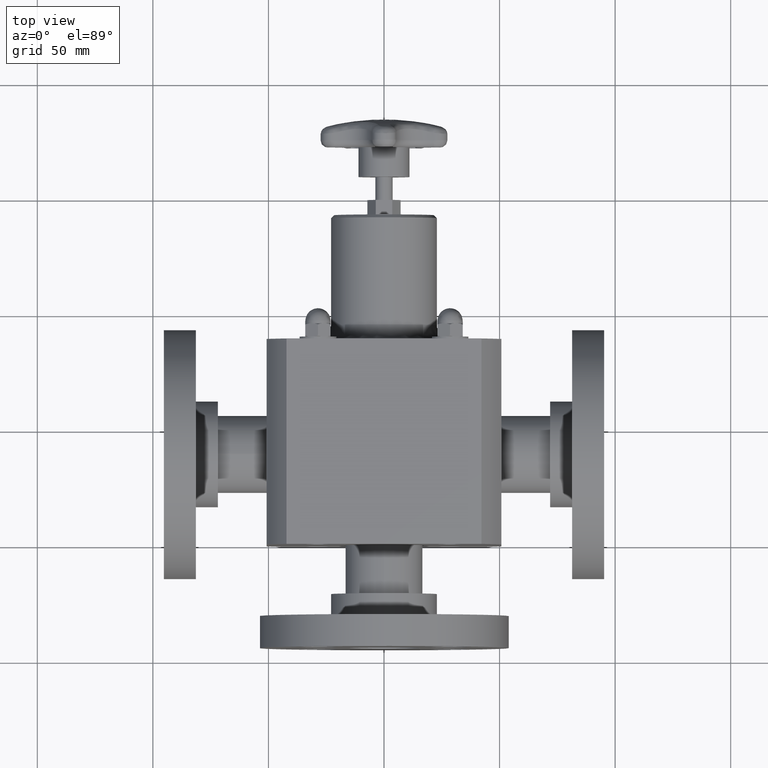
[diagram: clean part render]
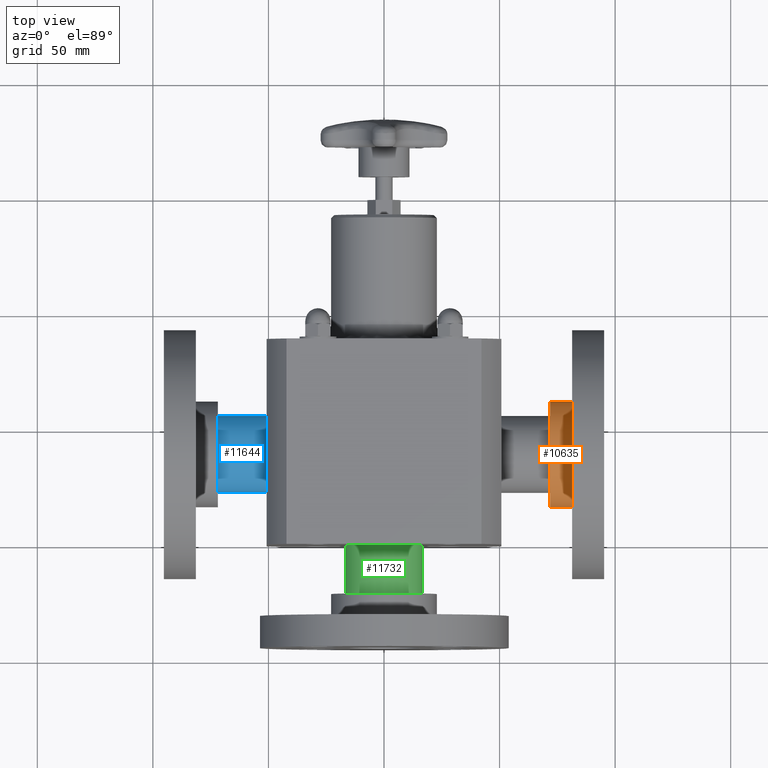
[diagram: same view with three faces highlighted in distinct colors, each labeled with its STEP entity id]
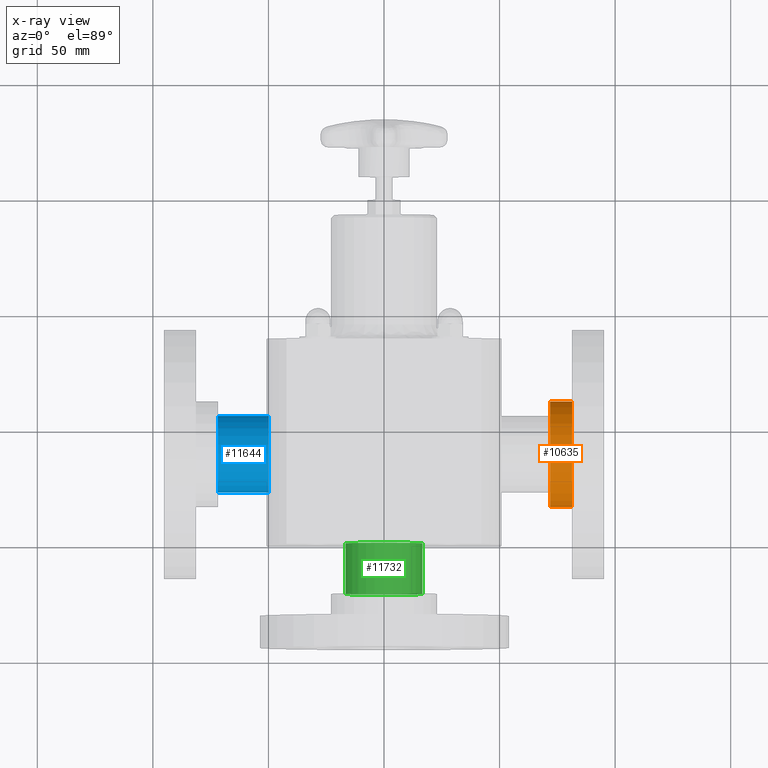
[diagram: x-ray of the same camera — body ghosted, the three highlighted faces saturated]
A machine part, top view with three faces highlighted in distinct colors.
The next image is the same camera in x-ray (body ghosted, the three faces saturated) — at least one of them is partly hidden behind the body in this view.
Their STEP definitions:

[orange] entity #10635 — the highlighted cylindrical surface (bore or boss wall) has radius 22.86 mm, axis along (-1, -0, 0).
#10593=CARTESIAN_POINT('',(2.829999999999999,0.649999999999999,-9.022522E-016));
#10594=VERTEX_POINT('',#10593);
#10595=CARTESIAN_POINT('',(2.829999999999999,1.549999999999999,5.525790E-017));
#10596=DIRECTION('',(-1.0,0.0,0.0));
#10597=DIRECTION('',(0.0,-1.0,0.0));
#10598=AXIS2_PLACEMENT_3D('',#10595,#10596,#10597);
#10599=CIRCLE('',#10598,0.900000000000000);
#10600=EDGE_CURVE('',#10594,#10594,#10599,.T.);
#10616=CARTESIAN_POINT('',(3.017499999999999,1.549999999999999,4.304139E-017));
#10617=DIRECTION('',(-1.0,-5.551115E-017,6.515473E-017));
#10618=DIRECTION('',(0.0,-1.0,0.0));
#10619=AXIS2_PLACEMENT_3D('',#10616,#10617,#10618);
#10620=CYLINDRICAL_SURFACE('',#10619,0.900000000000000);
#10621=ORIENTED_EDGE('',*,*,#10600,.F.);
#10622=EDGE_LOOP('',(#10621));
#10623=FACE_OUTER_BOUND('',#10622,.T.);
#10624=CARTESIAN_POINT('',(3.204999999999999,0.649999999999999,-9.266852E-016));
#10625=VERTEX_POINT('',#10624);
#10626=CARTESIAN_POINT('',(3.204999999999999,1.549999999999999,3.082487E-017));
#10627=DIRECTION('',(-1.0,0.0,0.0));
#10628=DIRECTION('',(0.0,-1.0,0.0));
#10629=AXIS2_PLACEMENT_3D('',#10626,#10627,#10628);
#10630=CIRCLE('',#10629,0.900000000000000);
#10631=EDGE_CURVE('',#10625,#10625,#10630,.T.);
#10632=ORIENTED_EDGE('',*,*,#10631,.T.);
#10633=EDGE_LOOP('',(#10632));
#10634=FACE_BOUND('',#10633,.T.);
#10635=ADVANCED_FACE('',(#10623,#10634),#10620,.T.);

[blue] entity #11644 — the highlighted cylindrical surface (bore or boss wall) has radius 16.7005 mm, axis along (1, 0, -0).
#10868=CARTESIAN_POINT('',(-2.830000000000001,1.550000000000036,0.657499999999999));
#10869=VERTEX_POINT('',#10868);
#10870=CARTESIAN_POINT('',(-2.830000000000001,1.549999999999996,-1.170974E-015));
#10871=DIRECTION('',(-1.0,0.0,0.0));
#10872=DIRECTION('',(0.0,0.0,-1.0));
#10873=AXIS2_PLACEMENT_3D('',#10870,#10871,#10872);
#10874=CIRCLE('',#10873,0.657500000000000);
#10875=EDGE_CURVE('',#10869,#10869,#10874,.T.);
#11311=CARTESIAN_POINT('',(-1.966729520810137,1.550000000000036,0.657499999999999));
#11312=VERTEX_POINT('',#11311);
#11313=CARTESIAN_POINT('',(-1.966729520810137,1.549999999999996,-1.248076E-015));
#11314=DIRECTION('',(1.0,0.0,0.0));
#11315=DIRECTION('',(0.0,0.0,-1.0));
#11316=AXIS2_PLACEMENT_3D('',#11313,#11314,#11315);
#11317=CIRCLE('',#11316,0.657500000000000);
#11318=EDGE_CURVE('',#11312,#11312,#11317,.T.);
#11633=CARTESIAN_POINT('',(-2.365000000000002,1.549999999999996,-1.212505E-015));
#11634=DIRECTION('',(1.0,1.665335E-016,-8.931406E-017));
#11635=DIRECTION('',(0.0,0.0,-1.0));
#11636=AXIS2_PLACEMENT_3D('',#11633,#11634,#11635);
#11637=CYLINDRICAL_SURFACE('',#11636,0.657500000000000);
#11638=ORIENTED_EDGE('',*,*,#10875,.F.);
#11639=EDGE_LOOP('',(#11638));
#11640=FACE_OUTER_BOUND('',#11639,.T.);
#11641=ORIENTED_EDGE('',*,*,#11318,.F.);
#11642=EDGE_LOOP('',(#11641));
#11643=FACE_BOUND('',#11642,.T.);
#11644=ADVANCED_FACE('',(#11640,#11643),#11637,.T.);

[green] entity #11732 — the highlighted cylindrical surface (bore or boss wall) has radius 16.7005 mm, axis along (0, 1, 0).
#10340=CARTESIAN_POINT('',(-4.064665E-014,-0.830000000000003,0.657499999999999));
#10341=VERTEX_POINT('',#10340);
#10342=CARTESIAN_POINT('',(-7.801923E-016,-0.830000000000003,-1.625798E-015));
#10343=DIRECTION('',(0.0,-1.0,0.0));
#10344=DIRECTION('',(0.0,0.0,-1.0));
#10345=AXIS2_PLACEMENT_3D('',#10342,#10343,#10344);
#10346=CIRCLE('',#10345,0.657500000000000);
#10347=EDGE_CURVE('',#10341,#10341,#10346,.T.);
#11450=CARTESIAN_POINT('',(-4.024600E-014,0.033290090360808,0.657499999999999));
#11451=VERTEX_POINT('',#11450);
#11452=CARTESIAN_POINT('',(-5.405811E-016,0.033290090360808,-1.524796E-015));
#11453=DIRECTION('',(0.0,1.0,0.0));
#11454=DIRECTION('',(0.0,0.0,-1.0));
#11455=AXIS2_PLACEMENT_3D('',#11452,#11453,#11454);
#11456=CIRCLE('',#11455,0.657500000000000);
#11457=EDGE_CURVE('',#11451,#11451,#11456,.T.);
#11721=CARTESIAN_POINT('',(-6.511288E-016,-0.365000000000003,-1.571395E-015));
#11722=DIRECTION('',(2.775558E-016,1.0,1.169965E-016));
#11723=DIRECTION('',(0.0,0.0,-1.0));
#11724=AXIS2_PLACEMENT_3D('',#11721,#11722,#11723);
#11725=CYLINDRICAL_SURFACE('',#11724,0.657500000000000);
#11726=ORIENTED_EDGE('',*,*,#10347,.F.);
#11727=EDGE_LOOP('',(#11726));
#11728=FACE_OUTER_BOUND('',#11727,.T.);
#11729=ORIENTED_EDGE('',*,*,#11457,.F.);
#11730=EDGE_LOOP('',(#11729));
#11731=FACE_BOUND('',#11730,.T.);
#11732=ADVANCED_FACE('',(#11728,#11731),#11725,.T.);